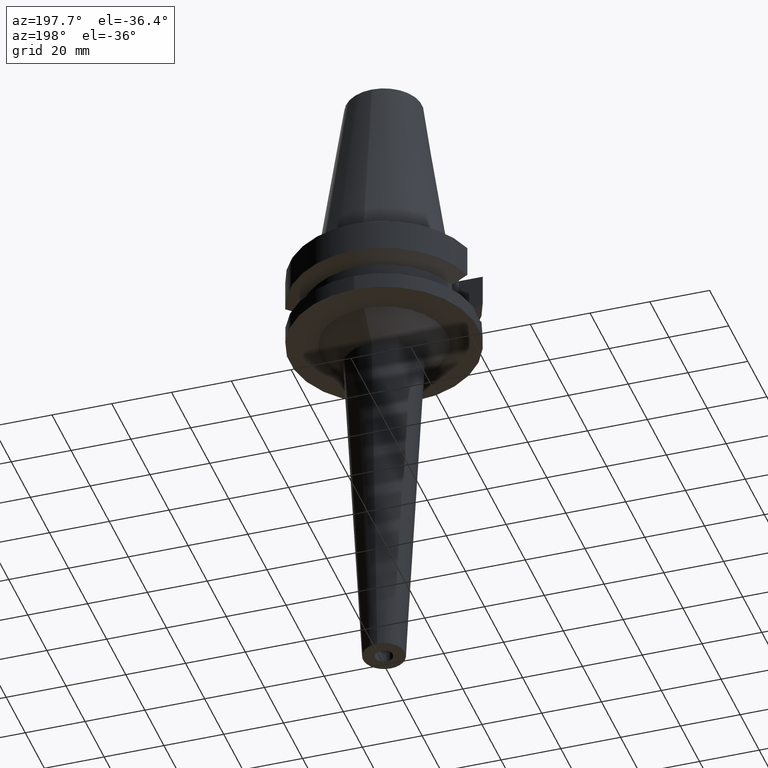
[diagram: clean part render]
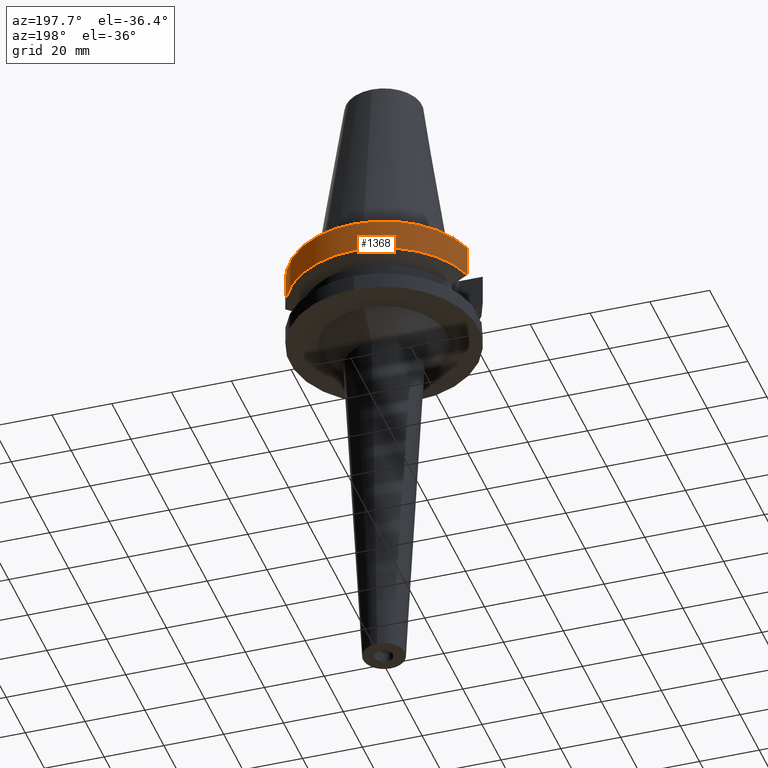
[diagram: same view with one face highlighted and labeled with its STEP entity id]
A machine part, auxiliary view. The second image highlights one B-rep face of the part: STEP entity #1368.
In plain terms, the highlighted cylindrical surface (partial cylindrical patch) has radius 31.5 mm, axis along (0, 0, -1).
Its self-contained STEP definition (entity closure, byte-faithful):
#108=CARTESIAN_POINT('',(0.E0,2.157460266058E-14,-1.E0));
#109=DIRECTION('',(0.E0,0.E0,-1.E0));
#110=DIRECTION('',(-9.667943721520E-1,2.555555555556E-1,0.E0));
#111=AXIS2_PLACEMENT_3D('',#108,#109,#110);
#116=CARTESIAN_POINT('',(0.E0,2.157460266058E-14,-1.E0));
#117=DIRECTION('',(0.E0,0.E0,-1.E0));
#118=DIRECTION('',(0.E0,1.E0,0.E0));
#119=AXIS2_PLACEMENT_3D('',#116,#117,#118);
#344=CARTESIAN_POINT('',(3.045402291366E1,8.049999277900E0,-1.156551215647E1));
#393=CARTESIAN_POINT('',(-3.045402162753E1,8.050004143464E0,-1.156546833011E1));
#414=CARTESIAN_POINT('',(0.E0,1.065333950388E-14,-1.156550565267E1));
#415=DIRECTION('',(0.E0,0.E0,1.E0));
#416=DIRECTION('',(9.667943721520E-1,2.555555555555E-1,0.E0));
#417=AXIS2_PLACEMENT_3D('',#414,#415,#416);
#422=CARTESIAN_POINT('',(0.E0,1.065333950388E-14,-1.156550565267E1));
#423=DIRECTION('',(0.E0,0.E0,1.E0));
#424=DIRECTION('',(0.E0,1.E0,0.E0));
#425=AXIS2_PLACEMENT_3D('',#422,#423,#424);
#430=DIRECTION('',(1.036636847253E-7,3.921704262777E-7,-9.999999999999E-1));
#431=VECTOR('',#430,1.056546833011E1);
#432=CARTESIAN_POINT('',(-3.045402272279E1,8.05E0,-1.E0));
#433=LINE('',#432,#431);
#437=DIRECTION('',(-1.806576684425E-8,6.834499276694E-8,1.E0));
#438=VECTOR('',#437,1.056551215647E1);
#439=CARTESIAN_POINT('',(3.045402291366E1,8.049999277900E0,-1.156551215647E1));
#440=LINE('',#439,#438);
#1023=CARTESIAN_POINT('',(-3.045402272279E1,8.05E0,-1.E0));
#1024=VERTEX_POINT('',#1023);
#1025=CARTESIAN_POINT('',(-3.046064939756E-14,3.15E1,-1.E0));
#1026=CARTESIAN_POINT('',(3.045402272279E1,8.05E0,-1.E0));
#1027=VERTEX_POINT('',#1025);
#1028=VERTEX_POINT('',#1026);
#1045=VERTEX_POINT('',#393);
#1050=VERTEX_POINT('',#344);
#1051=CARTESIAN_POINT('',(0.E0,3.15E1,-1.156550565267E1));
#1052=VERTEX_POINT('',#1051);
#1355=CARTESIAN_POINT('',(0.E0,2.157460266058E-14,7.617E1));
#1356=DIRECTION('',(0.E0,0.E0,-1.E0));
#1357=DIRECTION('',(0.E0,-1.E0,0.E0));
#1358=AXIS2_PLACEMENT_3D('',#1355,#1356,#1357);
#1359=CYLINDRICAL_SURFACE('',#1358,3.15E1);
#1360=ORIENTED_EDGE('',*,*,#1330,.T.);
#1361=ORIENTED_EDGE('',*,*,#1350,.F.);
#1362=ORIENTED_EDGE('',*,*,#1348,.F.);
#1363=ORIENTED_EDGE('',*,*,#1292,.T.);
#1364=ORIENTED_EDGE('',*,*,#1138,.F.);
#1365=ORIENTED_EDGE('',*,*,#1136,.F.);
#1366=EDGE_LOOP('',(#1360,#1361,#1362,#1363,#1364,#1365));
#1367=FACE_OUTER_BOUND('',#1366,.F.);
#112=CIRCLE('',#111,3.15E1);
#120=CIRCLE('',#119,3.15E1);
#418=CIRCLE('',#417,3.15E1);
#426=CIRCLE('',#425,3.15E1);
#1136=EDGE_CURVE('',#1024,#1027,#112,.T.);
#1138=EDGE_CURVE('',#1027,#1028,#120,.T.);
#1292=EDGE_CURVE('',#1050,#1028,#440,.T.);
#1330=EDGE_CURVE('',#1024,#1045,#433,.T.);
#1348=EDGE_CURVE('',#1050,#1052,#418,.T.);
#1350=EDGE_CURVE('',#1052,#1045,#426,.T.);
#1368=ADVANCED_FACE('',(#1367),#1359,.T.);